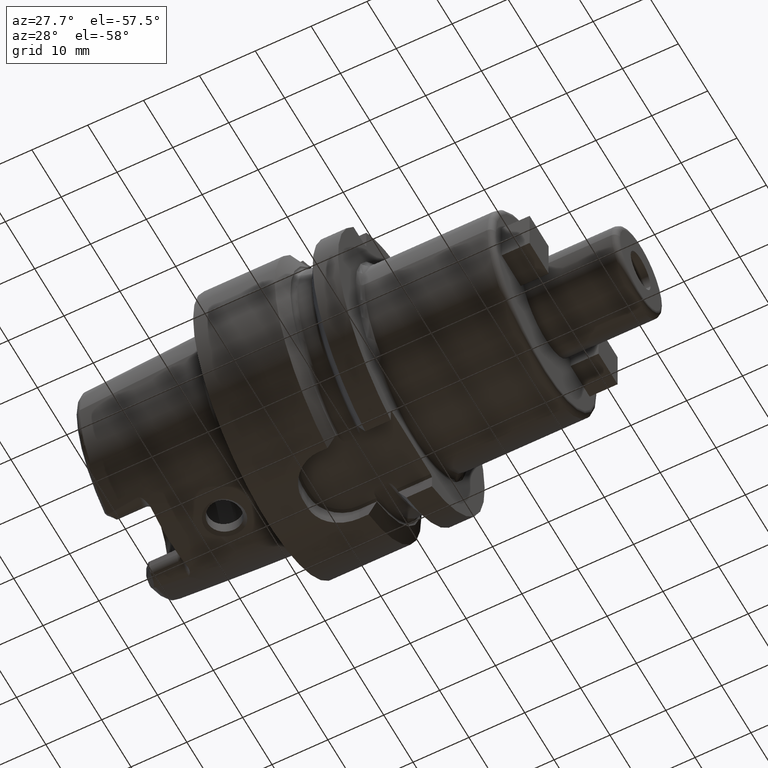
[diagram: clean part render]
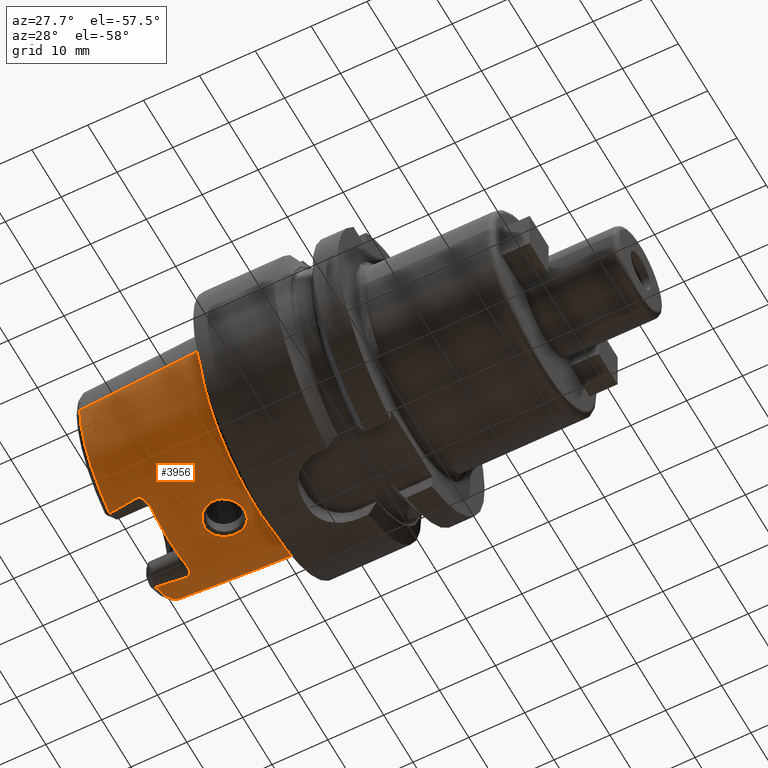
[diagram: same view with one face highlighted and labeled with its STEP entity id]
A machine part, auxiliary view. The second image highlights one B-rep face of the part: STEP entity #3956.
In plain terms, the highlighted conical surface has half-angle 2.868 deg.
Its self-contained STEP definition (entity closure, byte-faithful):
#312=CARTESIAN_POINT('',(-2.395003724237E1,0.E0,0.E0));
#313=DIRECTION('',(-1.E0,0.E0,0.E0));
#314=DIRECTION('',(0.E0,1.E0,0.E0));
#315=AXIS2_PLACEMENT_3D('',#312,#313,#314);
#396=CARTESIAN_POINT('',(-2.395003724237E1,0.E0,0.E0));
#397=DIRECTION('',(-1.E0,0.E0,0.E0));
#398=DIRECTION('',(0.E0,-4.346977410045E-1,-9.005764120637E-1));
#399=AXIS2_PLACEMENT_3D('',#396,#397,#398);
#538=CARTESIAN_POINT('',(-2.395003724237E1,7.848512546022E0,-1.626E1));
#539=CARTESIAN_POINT('',(-2.338687062145E1,7.913418905191E0,-1.626E1));
#540=CARTESIAN_POINT('',(-2.225079278786E1,8.043048814131E0,-1.626E1));
#541=CARTESIAN_POINT('',(-2.051761809462E1,8.237010561152E0,-1.626E1));
#542=CARTESIAN_POINT('',(-1.934246983352E1,8.366084019877E0,-1.626E1));
#543=CARTESIAN_POINT('',(-1.875E1,8.430570510981E0,-1.626E1));
#545=CARTESIAN_POINT('',(-1.735E1,0.E0,0.E0));
#546=DIRECTION('',(1.E0,0.E0,0.E0));
#547=DIRECTION('',(0.E0,-3.329198137635E-1,-9.429551408225E-1));
#548=AXIS2_PLACEMENT_3D('',#545,#546,#547);
#550=CARTESIAN_POINT('',(-1.875E1,-8.430570510981E0,-1.626E1));
#551=CARTESIAN_POINT('',(-1.934242285398E1,-8.366089133295E0,-1.626E1));
#552=CARTESIAN_POINT('',(-2.051750851388E1,-8.237022675572E0,-1.626E1));
#553=CARTESIAN_POINT('',(-2.225068477773E1,-8.043061050882E0,-1.626E1));
#554=CARTESIAN_POINT('',(-2.338682434939E1,-7.913424238162E0,-1.626E1));
#555=CARTESIAN_POINT('',(-2.395003724237E1,-7.848512546022E0,-1.626E1));
#557=DIRECTION('',(-9.987473526255E-1,5.003724236654E-2,0.E0));
#558=VECTOR('',#557,2.197756738445E1);
#559=CARTESIAN_POINT('',(-2.E0,-1.91548E1,0.E0));
#560=LINE('',#559,#558);
#561=CARTESIAN_POINT('',(-2.E0,0.E0,0.E0));
#562=DIRECTION('',(1.E0,0.E0,0.E0));
#563=DIRECTION('',(0.E0,-1.E0,0.E0));
#564=AXIS2_PLACEMENT_3D('',#561,#562,#563);
#566=DIRECTION('',(-9.987473526255E-1,-5.003724236654E-2,0.E0));
#567=VECTOR('',#566,2.197756738445E1);
#568=CARTESIAN_POINT('',(-2.E0,1.91548E1,0.E0));
#569=LINE('',#568,#567);
#570=CARTESIAN_POINT('',(-3.900704806678E0,1.472613263143E-9,
-1.905952784495E1));
#571=CARTESIAN_POINT('',(-3.900615166046E0,1.866673835517E-1,
-1.905953233594E1));
#572=CARTESIAN_POINT('',(-3.929106772139E0,5.615791165736E-1,
-1.905278636549E1));
#573=CARTESIAN_POINT('',(-4.067935659743E0,1.141371115647E0,-1.901987415608E1));
#574=CARTESIAN_POINT('',(-4.305275803453E0,1.696812277266E0,-1.896608466769E1));
#575=CARTESIAN_POINT('',(-4.631310915756E0,2.203141977498E0,-1.889697175416E1));
#576=CARTESIAN_POINT('',(-5.029325758557E0,2.640208284096E0,-1.882022687283E1));
#577=CARTESIAN_POINT('',(-5.502335557806E0,3.012425493173E0,-1.873976705482E1));
#578=CARTESIAN_POINT('',(-6.031693100467E0,3.299767302462E0,-1.866389707735E1));
#579=CARTESIAN_POINT('',(-6.601378280360E0,3.495209727250E0,-1.859890123537E1));
#580=CARTESIAN_POINT('',(-7.195766079017E0,3.593693219387E0,-1.854960016146E1));
#581=CARTESIAN_POINT('',(-7.797898207891E0,3.592954873520E0,-1.851900560565E1));
#582=CARTESIAN_POINT('',(-8.389607514507E0,3.493843645386E0,-1.850796332572E1));
#583=CARTESIAN_POINT('',(-8.955308440714E0,3.299965756509E0,-1.851504857574E1));
#584=CARTESIAN_POINT('',(-9.482323168774E0,3.015829343336E0,-1.853716886443E1));
#585=CARTESIAN_POINT('',(-9.956592743679E0,2.646507749701E0,-1.856998619870E1));
#586=CARTESIAN_POINT('',(-1.035805024007E1,2.210330095003E0,-1.860722351037E1));
#587=CARTESIAN_POINT('',(-1.068760086949E1,1.704936631005E0,-1.864430676429E1));
#588=CARTESIAN_POINT('',(-1.092850760626E1,1.148675507148E0,-1.867514058279E1));
#589=CARTESIAN_POINT('',(-1.107008421852E1,5.665302835740E-1,
-1.869480413424E1));
#590=CARTESIAN_POINT('',(-1.109946006146E1,1.886547531004E-1,
-1.869886562485E1));
#591=CARTESIAN_POINT('',(-1.109929976897E1,-1.694149622479E-9,
-1.869887365550E1));
#593=CARTESIAN_POINT('',(-1.109929976897E1,-1.694149622479E-9,
-1.869887365550E1));
#594=CARTESIAN_POINT('',(-1.109940582719E1,-1.883770157265E-1,
-1.869886834198E1));
#595=CARTESIAN_POINT('',(-1.107020313796E1,-5.660200308025E-1,
-1.869482353925E1));
#596=CARTESIAN_POINT('',(-1.092821837193E1,-1.149870271214E0,
-1.867509697756E1));
#597=CARTESIAN_POINT('',(-1.068662582479E1,-1.706645278667E0,
-1.864419634576E1));
#598=CARTESIAN_POINT('',(-1.035751606465E1,-2.210879090519E0,
-1.860716549548E1));
#599=CARTESIAN_POINT('',(-9.958609867881E0,-2.644300173651E0,
-1.857018334682E1));
#600=CARTESIAN_POINT('',(-9.486840676270E0,-3.012811876655E0,
-1.853743127057E1));
#601=CARTESIAN_POINT('',(-8.960996126324E0,-3.297462762815E0,
-1.851520931171E1));
#602=CARTESIAN_POINT('',(-8.395045625957E0,-3.492509839186E0,
-1.850794085366E1));
#603=CARTESIAN_POINT('',(-7.802939202272E0,-3.592541146068E0,
-1.851882915075E1));
#604=CARTESIAN_POINT('',(-7.200782399978E0,-3.594089182457E0,
-1.854926675795E1));
#605=CARTESIAN_POINT('',(-6.606734575569E0,-3.496516221273E0,
-1.859837946641E1));
#606=CARTESIAN_POINT('',(-6.037104456337E0,-3.302164399968E0,
-1.866319393274E1));
#607=CARTESIAN_POINT('',(-5.506285006692E0,-3.015121680460E0,
-1.873913453288E1));
#608=CARTESIAN_POINT('',(-5.030644910532E0,-2.641776999533E0,
-1.881995613891E1));
#609=CARTESIAN_POINT('',(-4.630438770706E0,-2.202123065507E0,
-1.889715328522E1));
#610=CARTESIAN_POINT('',(-4.304079615875E0,-1.694652591687E0,
-1.896634017977E1));
#611=CARTESIAN_POINT('',(-4.067571850522E0,-1.139896759683E0,
-1.901996411725E1));
#612=CARTESIAN_POINT('',(-3.929201891757E0,-5.619134502676E-1,
-1.905276092132E1));
#613=CARTESIAN_POINT('',(-3.900566078900E0,-1.868846488735E-1,
-1.905953479521E1));
#614=CARTESIAN_POINT('',(-3.900704806678E0,1.472613263143E-9,
-1.905952784495E1));
#628=CARTESIAN_POINT('',(-1.773329688134E1,7.65E0,-1.669754752403E1));
#629=CARTESIAN_POINT('',(-1.776947247066E1,7.729059385556E0,-1.665933282211E1));
#630=CARTESIAN_POINT('',(-1.784645950292E1,7.875588577417E0,-1.658658226692E1));
#631=CARTESIAN_POINT('',(-1.797598596456E1,8.061319539841E0,-1.648972669395E1));
#632=CARTESIAN_POINT('',(-1.811580589891E1,8.210035689763E0,-1.640822924880E1));
#633=CARTESIAN_POINT('',(-1.827179872439E1,8.326706598234E0,-1.634045416525E1));
#634=CARTESIAN_POINT('',(-1.843478541104E1,8.401925448772E0,-1.629262972013E1));
#635=CARTESIAN_POINT('',(-1.859282796322E1,8.436389852398E0,-1.626585486387E1));
#636=CARTESIAN_POINT('',(-1.869807882458E1,8.436221793506E0,-1.626E1));
#637=CARTESIAN_POINT('',(-1.875E1,8.430570510981E0,-1.626E1));
#639=CARTESIAN_POINT('',(-1.735E1,6.120985459700E0,-1.733695162471E1));
#640=CARTESIAN_POINT('',(-1.735E1,6.272392467939E0,-1.728349585486E1));
#641=CARTESIAN_POINT('',(-1.737593166382E1,6.588248477591E0,-1.716616239276E1));
#642=CARTESIAN_POINT('',(-1.750204876912E1,7.100128748192E0,-1.695449641606E1));
#643=CARTESIAN_POINT('',(-1.764761568591E1,7.462749348644E0,-1.678805831888E1));
#644=CARTESIAN_POINT('',(-1.773329688134E1,7.65E0,-1.669754752403E1));
#760=CARTESIAN_POINT('',(-1.773329688134E1,-7.65E0,-1.669754752403E1));
#761=CARTESIAN_POINT('',(-1.764762892058E1,-7.462778272151E0,
-1.678804433821E1));
#762=CARTESIAN_POINT('',(-1.750207175517E1,-7.100199843490E0,
-1.695446553267E1));
#763=CARTESIAN_POINT('',(-1.737593141247E1,-6.588263301611E0,
-1.716615729294E1));
#764=CARTESIAN_POINT('',(-1.735E1,-6.272398566500E0,-1.728349370170E1));
#765=CARTESIAN_POINT('',(-1.735E1,-6.120985459700E0,-1.733695162471E1));
#772=CARTESIAN_POINT('',(-1.875E1,-8.430570510981E0,-1.626E1));
#773=CARTESIAN_POINT('',(-1.869711929168E1,-8.436326232426E0,-1.626E1));
#774=CARTESIAN_POINT('',(-1.859025227455E1,-8.436560240682E0,
-1.626591318715E1));
#775=CARTESIAN_POINT('',(-1.842603308462E1,-8.399032357197E0,
-1.629461831565E1));
#776=CARTESIAN_POINT('',(-1.826748973866E1,-8.323624837312E0,
-1.634226240332E1));
#777=CARTESIAN_POINT('',(-1.811421720143E1,-8.208556422520E0,
-1.640905691628E1));
#778=CARTESIAN_POINT('',(-1.797414400575E1,-8.059049664069E0,
-1.649094138579E1));
#779=CARTESIAN_POINT('',(-1.784544419305E1,-7.873759725462E0,
-1.658750118538E1));
#780=CARTESIAN_POINT('',(-1.776912464093E1,-7.728299226425E0,
-1.665970025798E1));
#781=CARTESIAN_POINT('',(-1.773329688134E1,-7.65E0,-1.669754752403E1));
#2888=CARTESIAN_POINT('',(-2.E0,1.91548E1,0.E0));
#2889=CARTESIAN_POINT('',(-2.E0,-1.91548E1,0.E0));
#2890=VERTEX_POINT('',#2888);
#2891=VERTEX_POINT('',#2889);
#2892=CARTESIAN_POINT('',(-2.395003724237E1,1.805510313416E1,0.E0));
#2893=VERTEX_POINT('',#2892);
#2894=CARTESIAN_POINT('',(-2.395003724237E1,-1.805510313416E1,0.E0));
#2895=VERTEX_POINT('',#2894);
#2912=CARTESIAN_POINT('',(-2.395003724237E1,7.848512546022E0,-1.626E1));
#2913=VERTEX_POINT('',#2912);
#2914=CARTESIAN_POINT('',(-2.395003724237E1,-7.848512546022E0,-1.626E1));
#2915=VERTEX_POINT('',#2914);
#2939=CARTESIAN_POINT('',(-1.773329688134E1,-7.65E0,-1.669754752403E1));
#2941=VERTEX_POINT('',#2939);
#2942=VERTEX_POINT('',#765);
#2943=VERTEX_POINT('',#639);
#2944=VERTEX_POINT('',#644);
#2955=CARTESIAN_POINT('',(-1.875E1,-8.430570510981E0,-1.626E1));
#2956=VERTEX_POINT('',#2955);
#2957=CARTESIAN_POINT('',(-1.875E1,8.430570510981E0,-1.626E1));
#2958=VERTEX_POINT('',#2957);
#3230=VERTEX_POINT('',#570);
#3231=VERTEX_POINT('',#591);
#3924=CARTESIAN_POINT('',(-1.297501862118E1,0.E0,0.E0));
#3925=DIRECTION('',(1.E0,0.E0,0.E0));
#3926=DIRECTION('',(0.E0,-1.E0,0.E0));
#3927=AXIS2_PLACEMENT_3D('',#3924,#3925,#3926);
#3928=CONICAL_SURFACE('',#3927,1.860495156708E1,2.868120487315E0);
#3930=ORIENTED_EDGE('',*,*,#3929,.T.);
#3932=ORIENTED_EDGE('',*,*,#3931,.F.);
#3934=ORIENTED_EDGE('',*,*,#3933,.F.);
#3936=ORIENTED_EDGE('',*,*,#3935,.F.);
#3938=ORIENTED_EDGE('',*,*,#3937,.F.);
#3940=ORIENTED_EDGE('',*,*,#3939,.F.);
#3941=ORIENTED_EDGE('',*,*,#3915,.T.);
#3942=ORIENTED_EDGE('',*,*,#3742,.T.);
#3943=ORIENTED_EDGE('',*,*,#3439,.F.);
#3945=ORIENTED_EDGE('',*,*,#3944,.T.);
#3946=ORIENTED_EDGE('',*,*,#3435,.T.);
#3947=ORIENTED_EDGE('',*,*,#3721,.T.);
#3948=EDGE_LOOP('',(#3930,#3932,#3934,#3936,#3938,#3940,#3941,#3942,#3943,#3945,
#3946,#3947));
#3949=FACE_OUTER_BOUND('',#3948,.F.);
#3951=ORIENTED_EDGE('',*,*,#3950,.F.);
#3953=ORIENTED_EDGE('',*,*,#3952,.F.);
#3954=EDGE_LOOP('',(#3951,#3953));
#3955=FACE_BOUND('',#3954,.F.);
#3956=ADVANCED_FACE('',(#3949,#3955),#3928,.T.);
#316=CIRCLE('',#315,1.805510313416E1);
#400=CIRCLE('',#399,1.805510313416E1);
#544=B_SPLINE_CURVE_WITH_KNOTS('',3,(#538,#539,#540,#541,#542,#543),
.UNSPECIFIED.,.F.,.F.,(4,1,1,4),(0.E0,3.333333333333E-1,6.666666666667E-1,1.E0),
.UNSPECIFIED.);
#549=CIRCLE('',#548,1.8385765E1);
#556=B_SPLINE_CURVE_WITH_KNOTS('',3,(#550,#551,#552,#553,#554,#555),
.UNSPECIFIED.,.F.,.F.,(4,1,1,4),(0.E0,3.333333333333E-1,6.666666666667E-1,1.E0),
.UNSPECIFIED.);
#565=CIRCLE('',#564,1.91548E1);
#592=B_SPLINE_CURVE_WITH_KNOTS('',3,(#570,#571,#572,#573,#574,#575,#576,#577,
#578,#579,#580,#581,#582,#583,#584,#585,#586,#587,#588,#589,#590,#591),
.UNSPECIFIED.,.F.,.F.,(4,1,1,1,1,1,1,1,1,1,1,1,1,1,1,1,1,1,1,4),(0.E0,
5.263157894737E-2,1.052631578947E-1,1.578947368421E-1,2.105263157895E-1,
2.631578947368E-1,3.157894736842E-1,3.684210526316E-1,4.210526315789E-1,
4.736842105263E-1,5.263157894737E-1,5.789473684211E-1,6.315789473684E-1,
6.842105263158E-1,7.368421052632E-1,7.894736842105E-1,8.421052631579E-1,
8.947368421053E-1,9.473684210526E-1,1.E0),.UNSPECIFIED.);
#615=B_SPLINE_CURVE_WITH_KNOTS('',3,(#593,#594,#595,#596,#597,#598,#599,#600,
#601,#602,#603,#604,#605,#606,#607,#608,#609,#610,#611,#612,#613,#614),
.UNSPECIFIED.,.F.,.F.,(4,1,1,1,1,1,1,1,1,1,1,1,1,1,1,1,1,1,1,4),(0.E0,
5.263157894737E-2,1.052631578947E-1,1.578947368421E-1,2.105263157895E-1,
2.631578947368E-1,3.157894736842E-1,3.684210526316E-1,4.210526315789E-1,
4.736842105263E-1,5.263157894737E-1,5.789473684211E-1,6.315789473684E-1,
6.842105263158E-1,7.368421052632E-1,7.894736842105E-1,8.421052631579E-1,
8.947368421053E-1,9.473684210526E-1,1.E0),.UNSPECIFIED.);
#638=B_SPLINE_CURVE_WITH_KNOTS('',3,(#628,#629,#630,#631,#632,#633,#634,#635,
#636,#637),.UNSPECIFIED.,.F.,.F.,(4,1,1,1,1,1,1,4),(0.E0,1.428571428571E-1,
2.857142857143E-1,4.285714285714E-1,5.714285714286E-1,7.142857142857E-1,
8.571428571429E-1,1.E0),.UNSPECIFIED.);
#645=B_SPLINE_CURVE_WITH_KNOTS('',3,(#639,#640,#641,#642,#643,#644),
.UNSPECIFIED.,.F.,.F.,(4,1,1,4),(0.E0,3.333333333333E-1,6.666666666667E-1,1.E0),
.UNSPECIFIED.);
#766=B_SPLINE_CURVE_WITH_KNOTS('',3,(#760,#761,#762,#763,#764,#765),
.UNSPECIFIED.,.F.,.F.,(4,1,1,4),(0.E0,3.333333333333E-1,6.666666666667E-1,1.E0),
.UNSPECIFIED.);
#782=B_SPLINE_CURVE_WITH_KNOTS('',3,(#772,#773,#774,#775,#776,#777,#778,#779,
#780,#781),.UNSPECIFIED.,.F.,.F.,(4,1,1,1,1,1,1,4),(0.E0,1.428571428571E-1,
2.857142857143E-1,4.285714285714E-1,5.714285714286E-1,7.142857142857E-1,
8.571428571429E-1,1.E0),.UNSPECIFIED.);
#3435=EDGE_CURVE('',#2890,#2893,#569,.T.);
#3439=EDGE_CURVE('',#2891,#2895,#560,.T.);
#3721=EDGE_CURVE('',#2893,#2913,#316,.T.);
#3742=EDGE_CURVE('',#2915,#2895,#400,.T.);
#3915=EDGE_CURVE('',#2956,#2915,#556,.T.);
#3929=EDGE_CURVE('',#2913,#2958,#544,.T.);
#3931=EDGE_CURVE('',#2944,#2958,#638,.T.);
#3933=EDGE_CURVE('',#2943,#2944,#645,.T.);
#3935=EDGE_CURVE('',#2942,#2943,#549,.T.);
#3937=EDGE_CURVE('',#2941,#2942,#766,.T.);
#3939=EDGE_CURVE('',#2956,#2941,#782,.T.);
#3944=EDGE_CURVE('',#2891,#2890,#565,.T.);
#3950=EDGE_CURVE('',#3230,#3231,#592,.T.);
#3952=EDGE_CURVE('',#3231,#3230,#615,.T.);